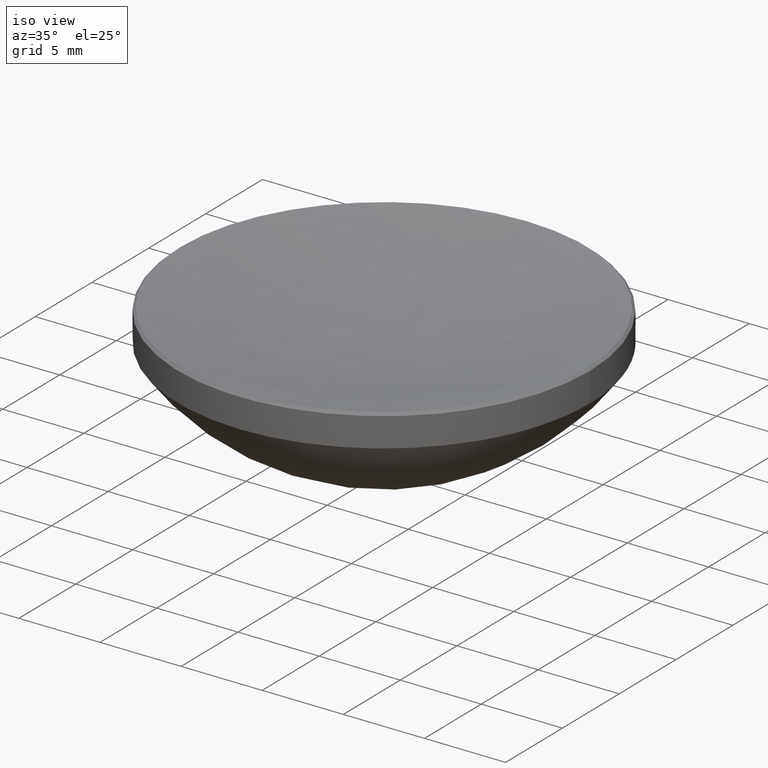
[diagram: clean part render]
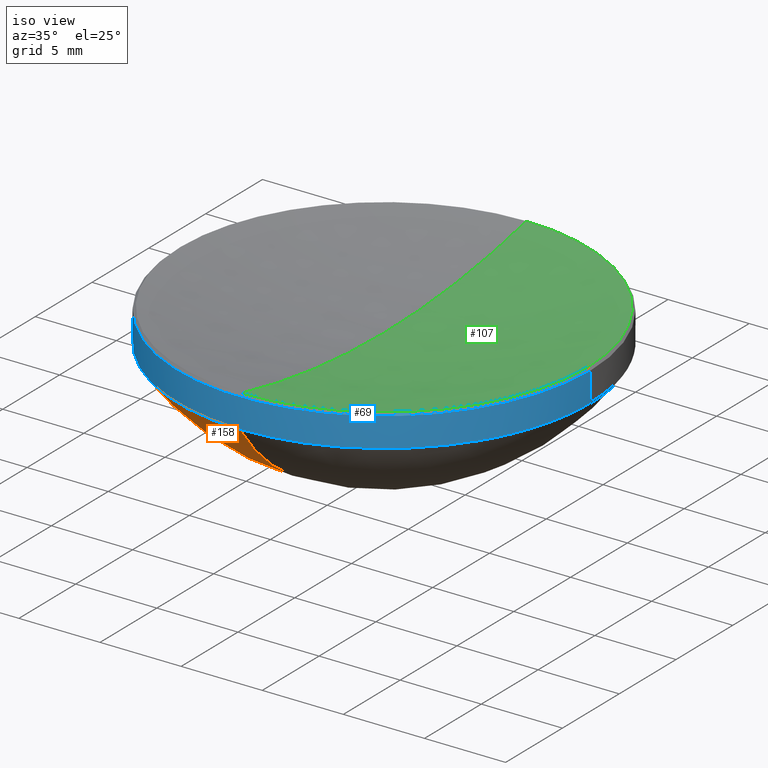
[diagram: same view with three faces highlighted in distinct colors, each labeled with its STEP entity id]
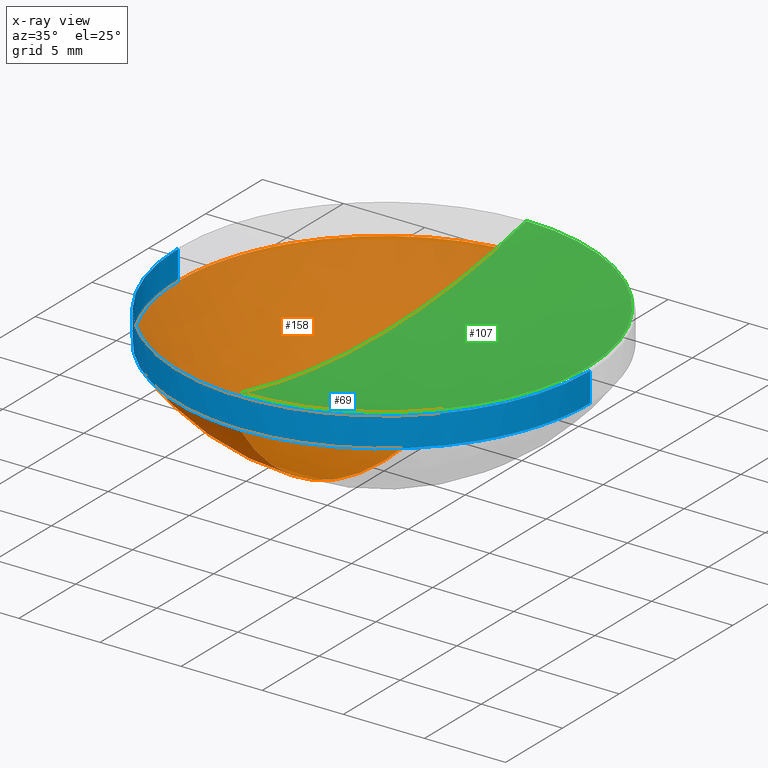
[diagram: x-ray of the same camera — body ghosted, the three highlighted faces saturated]
A machine part, iso view with three faces highlighted in distinct colors.
The next image is the same camera in x-ray (body ghosted, the three faces saturated) — at least one of them is partly hidden behind the body in this view.
Their STEP definitions:

[orange] entity #158 — the highlighted spherical surface has radius 15.5 mm.
#3 = CARTESIAN_POINT ( 'NONE',  ( -12.69999999999999751, 0.000000000000000000, 10.00000000000000000 ) ) ;
#6 = EDGE_CURVE ( 'NONE', #255, #78, #90, .T. ) ;
#15 = CIRCLE ( 'NONE', #242, 15.49999999999999645 ) ;
#16 = SPHERICAL_SURFACE ( 'NONE', #224, 15.49999999999999645 ) ;
#27 = CARTESIAN_POINT ( 'NONE',  ( 0.000000000000000000, 0.000000000000000000, 10.00000000000000000 ) ) ;
#40 = ORIENTED_EDGE ( 'NONE', *, *, #280, .F. ) ;
#62 = DIRECTION ( 'NONE',  ( -1.000000000000000000, 1.224646799147353207E-16, 0.000000000000000000 ) ) ;
#67 = CARTESIAN_POINT ( 'NONE',  ( 0.000000000000000000, 0.000000000000000000, 18.88594395660922487 ) ) ;
#78 = VERTEX_POINT ( 'NONE', #268 ) ;
#88 = DIRECTION ( 'NONE',  ( -1.224646799147353207E-16, -1.000000000000000000, 0.000000000000000000 ) ) ;
#90 = CIRCLE ( 'NONE', #222, 12.69999999999999751 ) ;
#110 = CIRCLE ( 'NONE', #248, 12.69999999999999751 ) ;
#121 = ORIENTED_EDGE ( 'NONE', *, *, #265, .F. ) ;
#152 = VERTEX_POINT ( 'NONE', #188 ) ;
#156 = CARTESIAN_POINT ( 'NONE',  ( 0.000000000000000000, 0.000000000000000000, 18.88594395660922487 ) ) ;
#158 = ADVANCED_FACE ( 'NONE', ( #271 ), #16, .T. ) ;
#162 = DIRECTION ( 'NONE',  ( 1.000000000000000000, 0.000000000000000000, 0.000000000000000000 ) ) ;
#171 = DIRECTION ( 'NONE',  ( 0.000000000000000000, 1.000000000000000000, 0.000000000000000000 ) ) ;
#176 = DIRECTION ( 'NONE',  ( 0.000000000000000000, 0.000000000000000000, -1.000000000000000000 ) ) ;
#184 = EDGE_LOOP ( 'NONE', ( #121, #212, #278, #40 ) ) ;
#188 = CARTESIAN_POINT ( 'NONE',  ( 0.000000000000000000, 9.491012693391985815E-16, 3.385943956609228422 ) ) ;
#190 = CARTESIAN_POINT ( 'NONE',  ( 0.000000000000000000, 0.000000000000000000, 18.88594395660922487 ) ) ;
#194 = DIRECTION ( 'NONE',  ( -1.000000000000000000, 0.000000000000000000, 0.000000000000000000 ) ) ;
#198 = DIRECTION ( 'NONE',  ( 1.000000000000000000, -0.000000000000000000, 0.000000000000000000 ) ) ;
#201 = AXIS2_PLACEMENT_3D ( 'NONE', #67, #62, #88 ) ;
#202 = DIRECTION ( 'NONE',  ( -0.000000000000000000, -0.000000000000000000, 1.000000000000000000 ) ) ;
#210 = CIRCLE ( 'NONE', #201, 15.49999999999999645 ) ;
#212 = ORIENTED_EDGE ( 'NONE', *, *, #257, .T. ) ;
#222 = AXIS2_PLACEMENT_3D ( 'NONE', #246, #202, #162 ) ;
#224 = AXIS2_PLACEMENT_3D ( 'NONE', #190, #194, #171 ) ;
#237 = DIRECTION ( 'NONE',  ( 1.000000000000000000, 0.000000000000000000, 0.000000000000000000 ) ) ;
#242 = AXIS2_PLACEMENT_3D ( 'NONE', #156, #198, #176 ) ;
#244 = VERTEX_POINT ( 'NONE', #252 ) ;
#246 = CARTESIAN_POINT ( 'NONE',  ( 0.000000000000000000, 0.000000000000000000, 10.00000000000000000 ) ) ;
#248 = AXIS2_PLACEMENT_3D ( 'NONE', #27, #260, #237 ) ;
#252 = CARTESIAN_POINT ( 'NONE',  ( 0.000000000000000000, 12.69999999999999574, 10.00000000000000000 ) ) ;
#255 = VERTEX_POINT ( 'NONE', #3 ) ;
#257 = EDGE_CURVE ( 'NONE', #152, #78, #210, .T. ) ;
#260 = DIRECTION ( 'NONE',  ( -0.000000000000000000, -0.000000000000000000, 1.000000000000000000 ) ) ;
#265 = EDGE_CURVE ( 'NONE', #152, #244, #15, .T. ) ;
#268 = CARTESIAN_POINT ( 'NONE',  ( -1.555301434917138038E-15, -12.69999999999999574, 10.00000000000000000 ) ) ;
#271 = FACE_OUTER_BOUND ( 'NONE', #184, .T. ) ;
#278 = ORIENTED_EDGE ( 'NONE', *, *, #6, .F. ) ;
#280 = EDGE_CURVE ( 'NONE', #244, #255, #110, .T. ) ;

[blue] entity #69 — the highlighted cylindrical surface (partial cylindrical patch) has radius 12.7 mm, axis along (-0, -0, -1).
#2 = EDGE_CURVE ( 'NONE', #99, #150, #180, .T. ) ;
#3 = CARTESIAN_POINT ( 'NONE',  ( -12.69999999999999751, 0.000000000000000000, 10.00000000000000000 ) ) ;
#6 = EDGE_CURVE ( 'NONE', #255, #78, #90, .T. ) ;
#13 = FACE_OUTER_BOUND ( 'NONE', #146, .T. ) ;
#19 = CARTESIAN_POINT ( 'NONE',  ( 0.000000000000000000, 0.000000000000000000, 11.79999999999999716 ) ) ;
#22 = EDGE_CURVE ( 'NONE', #150, #255, #269, .T. ) ;
#30 = CARTESIAN_POINT ( 'NONE',  ( 0.000000000000000000, 0.000000000000000000, 20.00000000000000000 ) ) ;
#31 = AXIS2_PLACEMENT_3D ( 'NONE', #19, #138, #223 ) ;
#33 = CARTESIAN_POINT ( 'NONE',  ( -12.69999999999999929, 0.000000000000000000, 11.79999999999999716 ) ) ;
#43 = VECTOR ( 'NONE', #75, 1000.000000000000000 ) ;
#51 = DIRECTION ( 'NONE',  ( -0.000000000000000000, -0.000000000000000000, -1.000000000000000000 ) ) ;
#52 = CARTESIAN_POINT ( 'NONE',  ( -12.69999999999999929, 0.000000000000000000, 20.00000000000000000 ) ) ;
#59 = ORIENTED_EDGE ( 'NONE', *, *, #2, .T. ) ;
#69 = ADVANCED_FACE ( 'NONE', ( #13 ), #161, .T. ) ;
#71 = VECTOR ( 'NONE', #51, 1000.000000000000000 ) ;
#75 = DIRECTION ( 'NONE',  ( -0.000000000000000000, -0.000000000000000000, -1.000000000000000000 ) ) ;
#77 = CARTESIAN_POINT ( 'NONE',  ( 12.69999999999999929, 1.555301434917138433E-15, 11.79999999999999716 ) ) ;
#78 = VERTEX_POINT ( 'NONE', #268 ) ;
#79 = CARTESIAN_POINT ( 'NONE',  ( 0.000000000000000000, 0.000000000000000000, 10.00000000000000000 ) ) ;
#90 = CIRCLE ( 'NONE', #222, 12.69999999999999751 ) ;
#97 = DIRECTION ( 'NONE',  ( -1.000000000000000000, 0.000000000000000000, 0.000000000000000000 ) ) ;
#99 = VERTEX_POINT ( 'NONE', #77 ) ;
#114 = EDGE_CURVE ( 'NONE', #99, #189, #116, .T. ) ;
#116 = LINE ( 'NONE', #120, #43 ) ;
#120 = CARTESIAN_POINT ( 'NONE',  ( 12.69999999999999929, 1.555301434917138433E-15, 20.00000000000000000 ) ) ;
#137 = EDGE_CURVE ( 'NONE', #78, #189, #155, .T. ) ;
#138 = DIRECTION ( 'NONE',  ( 0.000000000000000000, 0.000000000000000000, -1.000000000000000000 ) ) ;
#141 = DIRECTION ( 'NONE',  ( -0.000000000000000000, -0.000000000000000000, -1.000000000000000000 ) ) ;
#143 = DIRECTION ( 'NONE',  ( 1.000000000000000000, 0.000000000000000000, 0.000000000000000000 ) ) ;
#146 = EDGE_LOOP ( 'NONE', ( #197, #59, #172, #192, #209 ) ) ;
#150 = VERTEX_POINT ( 'NONE', #33 ) ;
#155 = CIRCLE ( 'NONE', #177, 12.69999999999999751 ) ;
#161 = CYLINDRICAL_SURFACE ( 'NONE', #267, 12.69999999999999929 ) ;
#162 = DIRECTION ( 'NONE',  ( 1.000000000000000000, 0.000000000000000000, 0.000000000000000000 ) ) ;
#172 = ORIENTED_EDGE ( 'NONE', *, *, #22, .T. ) ;
#177 = AXIS2_PLACEMENT_3D ( 'NONE', #79, #247, #143 ) ;
#180 = CIRCLE ( 'NONE', #31, 12.69999999999999929 ) ;
#189 = VERTEX_POINT ( 'NONE', #238 ) ;
#192 = ORIENTED_EDGE ( 'NONE', *, *, #6, .T. ) ;
#197 = ORIENTED_EDGE ( 'NONE', *, *, #114, .F. ) ;
#202 = DIRECTION ( 'NONE',  ( -0.000000000000000000, -0.000000000000000000, 1.000000000000000000 ) ) ;
#209 = ORIENTED_EDGE ( 'NONE', *, *, #137, .T. ) ;
#222 = AXIS2_PLACEMENT_3D ( 'NONE', #246, #202, #162 ) ;
#223 = DIRECTION ( 'NONE',  ( 1.000000000000000000, 0.000000000000000000, 0.000000000000000000 ) ) ;
#238 = CARTESIAN_POINT ( 'NONE',  ( 12.69999999999999751, 1.555301434917138235E-15, 10.00000000000000000 ) ) ;
#246 = CARTESIAN_POINT ( 'NONE',  ( 0.000000000000000000, 0.000000000000000000, 10.00000000000000000 ) ) ;
#247 = DIRECTION ( 'NONE',  ( -0.000000000000000000, -0.000000000000000000, 1.000000000000000000 ) ) ;
#255 = VERTEX_POINT ( 'NONE', #3 ) ;
#267 = AXIS2_PLACEMENT_3D ( 'NONE', #30, #141, #97 ) ;
#268 = CARTESIAN_POINT ( 'NONE',  ( -1.555301434917138038E-15, -12.69999999999999574, 10.00000000000000000 ) ) ;
#269 = LINE ( 'NONE', #52, #71 ) ;

[green] entity #107 — the highlighted spherical surface has radius 55.2 mm.
#5 = AXIS2_PLACEMENT_3D ( 'NONE', #217, #23, #215 ) ;
#11 = VERTEX_POINT ( 'NONE', #165 ) ;
#23 = DIRECTION ( 'NONE',  ( -0.000000000000000000, -0.000000000000000000, 1.000000000000000000 ) ) ;
#24 = VERTEX_POINT ( 'NONE', #118 ) ;
#42 = ORIENTED_EDGE ( 'NONE', *, *, #119, .T. ) ;
#53 = CARTESIAN_POINT ( 'NONE',  ( 0.000000000000000000, 0.000000000000000000, 65.71917720888880865 ) ) ;
#65 = AXIS2_PLACEMENT_3D ( 'NONE', #206, #181, #183 ) ;
#85 = EDGE_LOOP ( 'NONE', ( #235, #42, #125, #282 ) ) ;
#87 = VERTEX_POINT ( 'NONE', #266 ) ;
#89 = AXIS2_PLACEMENT_3D ( 'NONE', #132, #256, #153 ) ;
#91 = EDGE_CURVE ( 'NONE', #11, #87, #115, .T. ) ;
#92 = DIRECTION ( 'NONE',  ( 0.000000000000000000, 1.000000000000000000, 0.000000000000000000 ) ) ;
#93 = SPHERICAL_SURFACE ( 'NONE', #279, 55.19999999999998863 ) ;
#107 = ADVANCED_FACE ( 'NONE', ( #225 ), #93, .F. ) ;
#111 = AXIS2_PLACEMENT_3D ( 'NONE', #112, #203, #229 ) ;
#112 = CARTESIAN_POINT ( 'NONE',  ( 0.000000000000000000, 0.000000000000000000, 11.96196640381658227 ) ) ;
#115 = CIRCLE ( 'NONE', #111, 12.53803359618341418 ) ;
#118 = CARTESIAN_POINT ( 'NONE',  ( 0.000000000000000000, 3.380025165646693876E-15, 10.51917720888882712 ) ) ;
#119 = EDGE_CURVE ( 'NONE', #24, #11, #270, .T. ) ;
#125 = ORIENTED_EDGE ( 'NONE', *, *, #91, .T. ) ;
#132 = CARTESIAN_POINT ( 'NONE',  ( 0.000000000000000000, 0.000000000000000000, 65.71917720888880865 ) ) ;
#153 = DIRECTION ( 'NONE',  ( 0.000000000000000000, 0.000000000000000000, -1.000000000000000000 ) ) ;
#164 = DIRECTION ( 'NONE',  ( -1.000000000000000000, 0.000000000000000000, 0.000000000000000000 ) ) ;
#165 = CARTESIAN_POINT ( 'NONE',  ( -1.535466271116798629E-15, -12.53803359618340529, 11.96196640381657872 ) ) ;
#181 = DIRECTION ( 'NONE',  ( -1.000000000000000000, 1.224646799147353207E-16, 0.000000000000000000 ) ) ;
#183 = DIRECTION ( 'NONE',  ( -1.224646799147353207E-16, -1.000000000000000000, 0.000000000000000000 ) ) ;
#187 = CIRCLE ( 'NONE', #89, 55.19999999999998863 ) ;
#199 = CARTESIAN_POINT ( 'NONE',  ( 0.000000000000000000, 12.53803359618340529, 11.96196640381657872 ) ) ;
#203 = DIRECTION ( 'NONE',  ( -0.000000000000000000, -0.000000000000000000, 1.000000000000000000 ) ) ;
#206 = CARTESIAN_POINT ( 'NONE',  ( 0.000000000000000000, 0.000000000000000000, 65.71917720888880865 ) ) ;
#215 = DIRECTION ( 'NONE',  ( 1.000000000000000000, 0.000000000000000000, 0.000000000000000000 ) ) ;
#217 = CARTESIAN_POINT ( 'NONE',  ( 0.000000000000000000, 0.000000000000000000, 11.96196640381658227 ) ) ;
#225 = FACE_OUTER_BOUND ( 'NONE', #85, .T. ) ;
#229 = DIRECTION ( 'NONE',  ( 1.000000000000000000, 0.000000000000000000, 0.000000000000000000 ) ) ;
#230 = VERTEX_POINT ( 'NONE', #199 ) ;
#235 = ORIENTED_EDGE ( 'NONE', *, *, #262, .F. ) ;
#236 = CIRCLE ( 'NONE', #5, 12.53803359618341418 ) ;
#239 = EDGE_CURVE ( 'NONE', #87, #230, #236, .T. ) ;
#256 = DIRECTION ( 'NONE',  ( 1.000000000000000000, 0.000000000000000000, 0.000000000000000000 ) ) ;
#262 = EDGE_CURVE ( 'NONE', #24, #230, #187, .T. ) ;
#266 = CARTESIAN_POINT ( 'NONE',  ( 12.53803359618341418, 1.545383853016968925E-15, 11.96196640381658227 ) ) ;
#270 = CIRCLE ( 'NONE', #65, 55.19999999999998863 ) ;
#279 = AXIS2_PLACEMENT_3D ( 'NONE', #53, #164, #92 ) ;
#282 = ORIENTED_EDGE ( 'NONE', *, *, #239, .T. ) ;